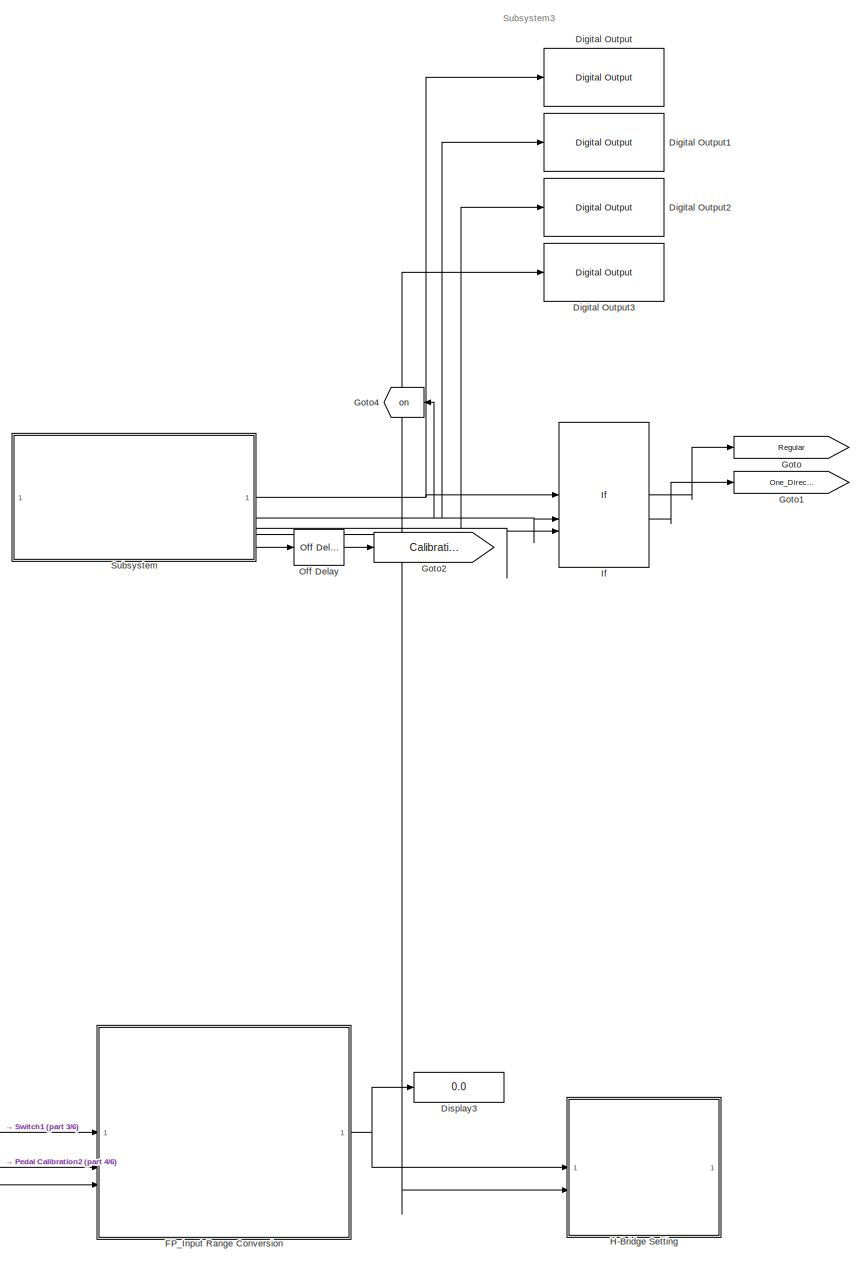
[diagram: root canvas - part 1/6, top right region]
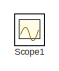
[diagram: root canvas - part 2/6, top left region]
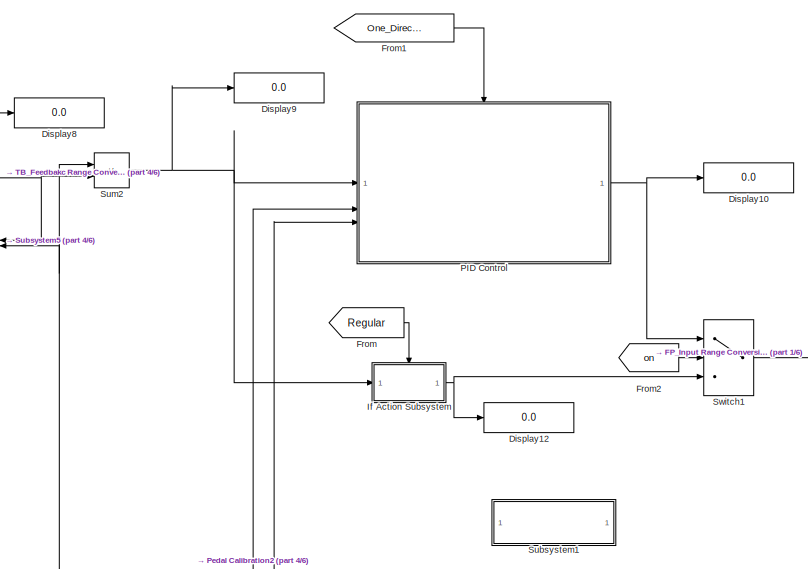
[diagram: root canvas - part 3/6, top center region]
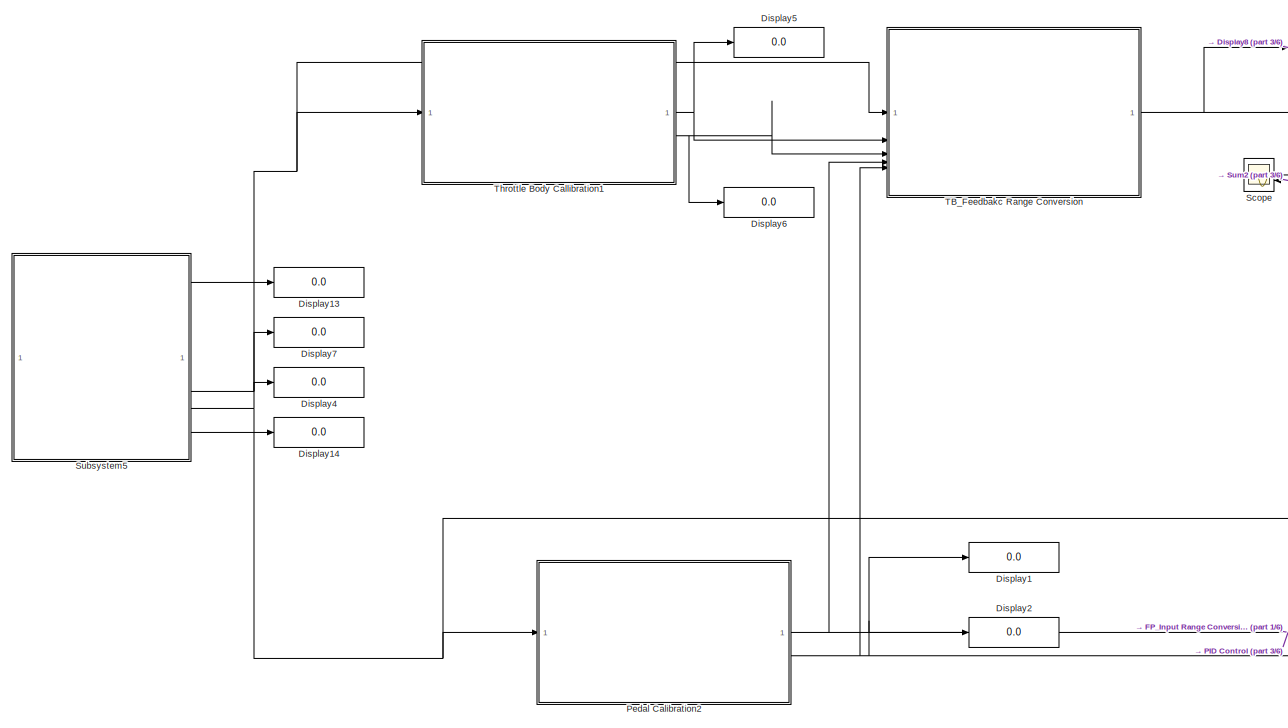
[diagram: root canvas - part 4/6, top left region]
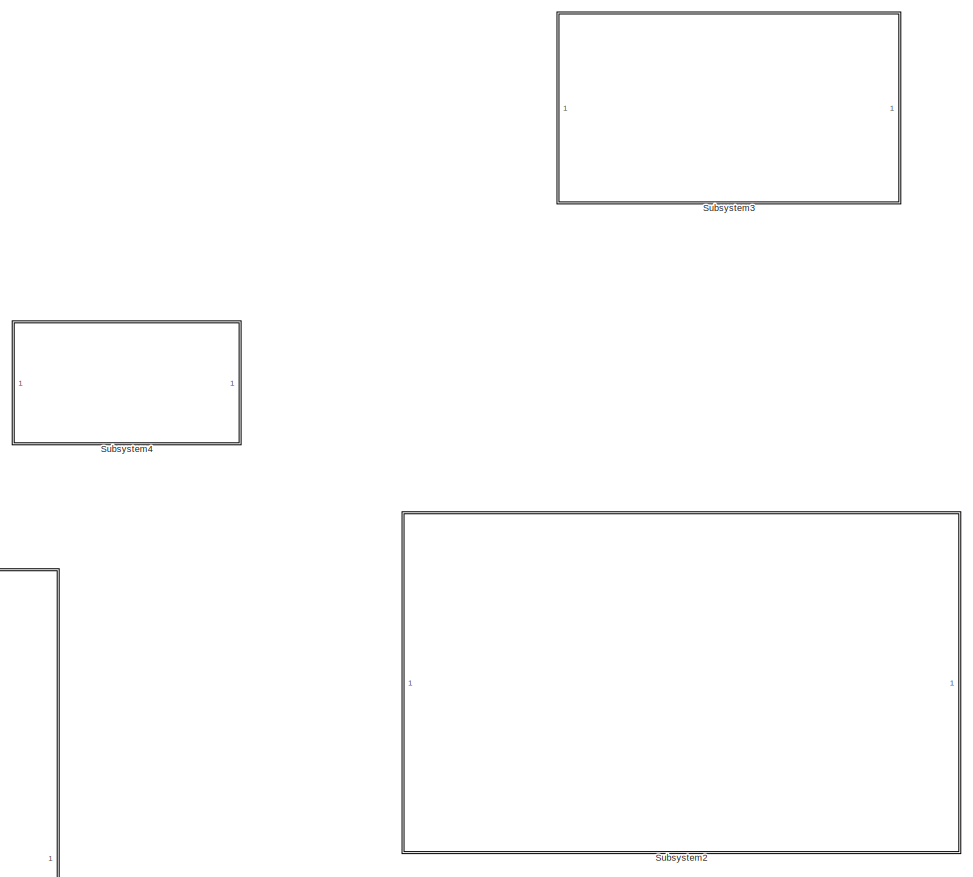
[diagram: root canvas - part 5/6, bottom right region]
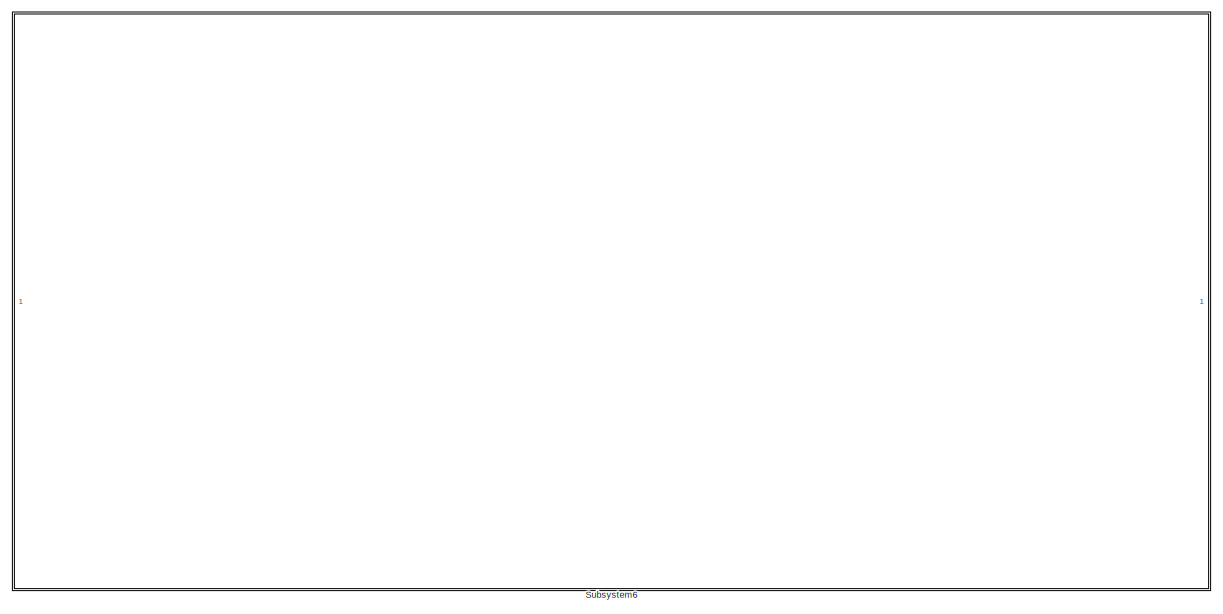
[diagram: root canvas - part 6/6, bottom center region]
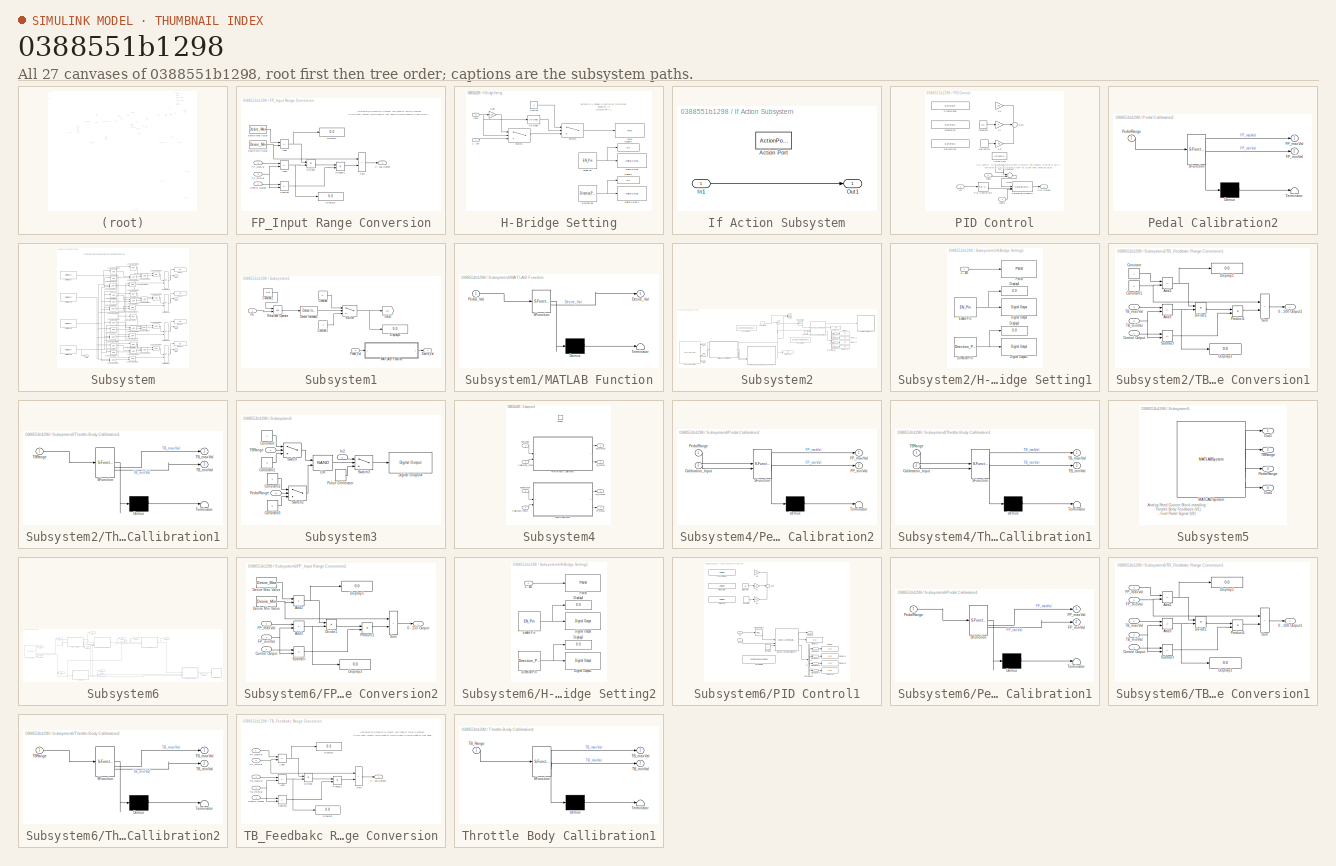
[diagram: thumbnail index - all 27 canvases of the model, root first then tree order]
MODEL slx_0388551b1298
KIND model
CONFIG AbsTol = auto
CONFIG EnableMultiTasking = off
CONFIG FixedStep = auto
CONFIG MaxStep = auto
CONFIG MinStep = auto
CONFIG RelTol = 1e-3
CONFIG SampleTimeConstraint = Unconstrained
CONFIG SolverName = FixedStepAuto
CONFIG StartTime = 0.0
CONFIG StopTime = inf
BLOCK [Reference] Digital Output  REF=arduinolib/Digital Output
  SourceBlock = arduinolib/Digital Output
  SourceType = Arduino Digital Output
BLOCK [Reference] Digital Output1  REF=arduinolib/Digital Output
  SourceBlock = arduinolib/Digital Output
  SourceType = Arduino Digital Output
BLOCK [Reference] Digital Output2  REF=arduinolib/Digital Output
  SourceBlock = arduinolib/Digital Output
  SourceType = Arduino Digital Output
BLOCK [Reference] Digital Output3  REF=arduinolib/Digital Output
  SourceBlock = arduinolib/Digital Output
  SourceType = Arduino Digital Output
BLOCK [Display] Display1
  Decimation = 2
BLOCK [Display] Display10
  Decimation = 2
BLOCK [Display] Display12
  Decimation = 2
BLOCK [Display] Display13
  Decimation = 2
BLOCK [Display] Display14
  Decimation = 2
BLOCK [Display] Display2
  Decimation = 2
BLOCK [Display] Display3
  Decimation = 2
BLOCK [Display] Display4
  Decimation = 2
BLOCK [Display] Display5
  Decimation = 2
BLOCK [Display] Display6
  Decimation = 2
BLOCK [Display] Display7
  Decimation = 2
BLOCK [Display] Display8
  Decimation = 2
BLOCK [Display] Display9
  Decimation = 2
BLOCK [SubSystem] FP_Input Range Conversion
BLOCK [Outport] FP_Input Range Conversion/0 - 255 Output
BLOCK [Sum] FP_Input Range Conversion/Add2
  IconShape = rectangular
  Inputs = +-
BLOCK [Sum] FP_Input Range Conversion/Add3
  IconShape = rectangular
  Inputs = +-
BLOCK [Inport] FP_Input Range Conversion/Control Output
BLOCK [Constant] FP_Input Range Conversion/Desire Max Value
  Value = Desire_Max
BLOCK [Constant] FP_Input Range Conversion/Desire Min Value
  Value = Desire_Min
BLOCK [Display] FP_Input Range Conversion/Display1
  Decimation = 1
BLOCK [Display] FP_Input Range Conversion/Display3
  Decimation = 1
BLOCK [Product] FP_Input Range Conversion/Divide1
  Inputs = */
BLOCK [Inport] FP_Input Range Conversion/FP_maxVal
  Port = 2
BLOCK [Inport] FP_Input Range Conversion/FP_minVal
  Port = 3
BLOCK [Product] FP_Input Range Conversion/Product1
BLOCK [Sum] FP_Input Range Conversion/Subtract
  IconShape = rectangular
  Inputs = +-
BLOCK [Sum] FP_Input Range Conversion/Sum
  IconShape = rectangular
BLOCK [From] From
  GotoTag = Regular
BLOCK [From] From1
  GotoTag = One_Direction
BLOCK [From] From2
  GotoTag = on
BLOCK [Goto] Goto
  GotoTag = Regular
BLOCK [Goto] Goto1
  GotoTag = One_Direction
BLOCK [Goto] Goto2
  GotoTag = Calibration_Mode
BLOCK [Goto] Goto4
  GotoTag = on
  NameLocation = top
BLOCK [SubSystem] H-Bridge Setting
BLOCK [Inport] H-Bridge Setting/1 - 100
BLOCK [Constant] H-Bridge Setting/Constant
  Value = 0
BLOCK [Reference] H-Bridge Setting/Digital Output  REF=arduinolib/Digital Output
  SourceBlock = arduinolib/Digital Output
  SourceType = Arduino Digital Output
BLOCK [Reference] H-Bridge Setting/Digital Output1  REF=arduinolib/Digital Output
  SourceBlock = arduinolib/Digital Output
  SourceType = Arduino Digital Output
BLOCK [Constant] H-Bridge Setting/Direction Pin
  Value = Direction_Pin
BLOCK [Display] H-Bridge Setting/Display3
  Decimation = 1
BLOCK [Display] H-Bridge Setting/Display4
  Decimation = 1
BLOCK [Constant] H-Bridge Setting/Enable Pin
  Value = EN_Pin
BLOCK [Gain] H-Bridge Setting/Gain
  Gain = 100
BLOCK [Inport] H-Bridge Setting/Input
  Port = 2
BLOCK [Reference] H-Bridge Setting/On Delay  REF=spsOnDelayLib/On Delay
  LibrarySourceBlock = sps_lib/Control/On Delay
  SourceBlock = spsOnDelayLib/On Delay
  SourceType = On/Off Delay
BLOCK [Reference] H-Bridge Setting/PWM  REF=arduinolib/PWM
  SourceBlock = arduinolib/PWM
  SourceType = Arduino PWM
BLOCK [Switch] H-Bridge Setting/Switch1
  Criteria = u2 ~= 0
  InputSameDT = off
  SaturateOnIntegerOverflow = off
BLOCK [Switch] H-Bridge Setting/Switch2
  Criteria = u2 ~= 0
  InputSameDT = off
  SaturateOnIntegerOverflow = off
BLOCK [If] If
  ElseIfExpressions = u2 == 1, u3 == 1
  IfExpression = u1 == 1
  NumInputs = 3
BLOCK [SubSystem] If Action Subsystem
  TreatAsAtomicUnit = on
BLOCK [ActionPort] If Action Subsystem/Action Port
  ActionPortLabel = if(u1 == 1)
BLOCK [Inport] If Action Subsystem/In1
BLOCK [Outport] If Action Subsystem/Out1
BLOCK [Reference] Off Delay  REF=spsOffDelayLib/Off Delay
  LibrarySourceBlock = sps_lib/Control/Off Delay
  SourceBlock = spsOffDelayLib/Off Delay
  SourceType = On/Off Delay
BLOCK [SubSystem] PID Control
BLOCK [ActionPort] PID Control/Action Port
  ActionPortLabel = elseif(u2 == 1)
BLOCK [Constant] PID Control/Constant
  Value = 0.01
BLOCK [EditField] PID Control/Delivertive
  Alignment = Center
  Commented = on
  LabelPosition = Hide
  ShowInitialText = on
BLOCK [Derivative] PID Control/Derivative
  Commented = on
BLOCK [Inport] PID Control/In1
BLOCK [Inport] PID Control/Input
  Port = 2
BLOCK [Inport] PID Control/Input1
  Port = 3
BLOCK [EditField] PID Control/Integration
  Alignment = Center
  Commented = on
  LabelPosition = Hide
  ShowInitialText = on
BLOCK [Integrator] PID Control/Integrator
  Commented = on
BLOCK [Gain] PID Control/Kd
  Commented = on
  Gain = Kd
BLOCK [Gain] PID Control/Ki
  Commented = on
  Gain = Ki
BLOCK [Gain] PID Control/Kp
  Commented = on
  Gain = Kp
BLOCK [Reference] PID Control/PID Controller2  REF=slpidlib/PID Controller
  LibrarySourceBlock = simulink/Continuous/PID Controller
  SourceBlock = slpidlib/PID Controller
  SourceType = PID 1dof
BLOCK [Outport] PID Control/PID Output
BLOCK [EditField] PID Control/Proprotional
  Alignment = Center
  Commented = on
  LabelPosition = Hide
  ShowInitialText = on
BLOCK [Reference] PID Control/Saturation Dynamic  REF=simulink/Discontinuities/Saturation
Dynamic
  SourceBlock = simulink/Discontinuities/Saturation\nDynamic
  SourceType = Saturation Dynamic
BLOCK [Sum] PID Control/Sum
  Commented = on
  Inputs = +++
BLOCK [Sum] PID Control/Sum1
  Inputs = ++|
BLOCK [SubSystem] Pedal Calibration2
  ErrorFcn = Stateflow.Translate.translate
  PermitHierarchicalResolution = ExplicitOnly
  SFBlockType = MATLAB Function
  TreatAsAtomicUnit = on
BLOCK [Demux] Pedal Calibration2/ Demux 
  Outputs = 1
BLOCK [S-Function] Pedal Calibration2/ SFunction 
  EnableBusSupport = on
  FunctionName = sf_sfun
  PortCounts = [1 3]
  SFcnIsStateOwnerBlock = off
  SFunctionDeploymentMode = off
  Tag = Stateflow S-Function 9
BLOCK [Terminator] Pedal Calibration2/ Terminator 
BLOCK [Outport] Pedal Calibration2/FP_maxVal
BLOCK [Outport] Pedal Calibration2/FP_minVal
  Port = 2
BLOCK [Inport] Pedal Calibration2/PedalRange
BLOCK [Scope] Scope
  Floating = off
  NameLocation = top
  NumInputPorts = 2
  ScopeSpecificationString = Simulink.scopes.TimeScopeBlockCfg('CurrentConfiguration', extmgr.ConfigurationSet(extmgr.Configuration('Core','General UI',true),extmgr.Configuration('Core','Source UI',true),extmgr.Configuration('Sources','WiredSimulink',true,'DataLoggingVariableName','ScopeData1'),extmgr.Configuration('Visuals','Time Domain',true,'SerializedDisplays',{struct('MinYLimReal','0.03635','MaxYLimReal','0.03659','YLabe...<+2256ch>
BLOCK [Scope] Scope1
  Floating = off
  IOType = viewer
  NumInputPorts = 1
  ScopeSpecificationString = Simulink.scopes.TimeScopeBlockCfg('CurrentConfiguration', extmgr.ConfigurationSet(extmgr.Configuration('Core','General UI',true),extmgr.Configuration('Core','Source UI',true),extmgr.Configuration('Sources','WiredSimulink',true,'DataLoggingVariableName','ScopeData2'),extmgr.Configuration('Visuals','Time Domain',true,'SerializedDisplays',{struct('MinYLimReal','-10','MaxYLimReal','10','YLabelReal',''...<+877ch>
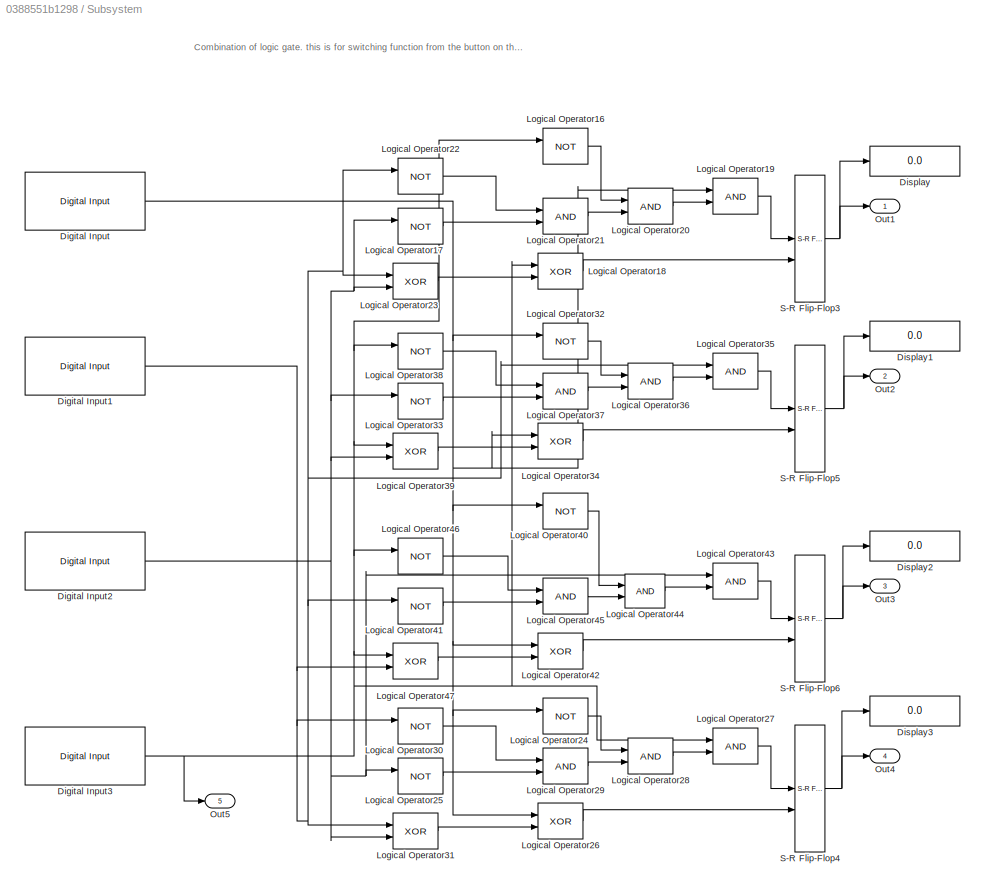
BLOCK [SubSystem] Subsystem
BLOCK [Reference] Subsystem/Digital Input  REF=arduinolib/Digital Input
  SourceBlock = arduinolib/Digital Input
  SourceType = Arduino Digital Input
BLOCK [Reference] Subsystem/Digital Input1  REF=arduinolib/Digital Input
  SourceBlock = arduinolib/Digital Input
  SourceType = Arduino Digital Input
BLOCK [Reference] Subsystem/Digital Input2  REF=arduinolib/Digital Input
  SourceBlock = arduinolib/Digital Input
  SourceType = Arduino Digital Input
BLOCK [Reference] Subsystem/Digital Input3  REF=arduinolib/Digital Input
  SourceBlock = arduinolib/Digital Input
  SourceType = Arduino Digital Input
BLOCK [Display] Subsystem/Display
  Decimation = 1
BLOCK [Display] Subsystem/Display1
  Decimation = 1
BLOCK [Display] Subsystem/Display2
  Decimation = 1
BLOCK [Display] Subsystem/Display3
  Decimation = 1
BLOCK [Logic] Subsystem/Logical Operator16
  AllPortsSameDT = off
  IconShape = distinctive
  Operator = NOT
  OutDataTypeStr = boolean
BLOCK [Logic] Subsystem/Logical Operator17
  AllPortsSameDT = off
  IconShape = distinctive
  Operator = NOT
  OutDataTypeStr = boolean
BLOCK [Logic] Subsystem/Logical Operator18
  AllPortsSameDT = off
  IconShape = distinctive
  Operator = XOR
  OutDataTypeStr = boolean
BLOCK [Logic] Subsystem/Logical Operator19
  AllPortsSameDT = off
  IconShape = distinctive
  OutDataTypeStr = boolean
BLOCK [Logic] Subsystem/Logical Operator20
  AllPortsSameDT = off
  IconShape = distinctive
  OutDataTypeStr = boolean
BLOCK [Logic] Subsystem/Logical Operator21
  AllPortsSameDT = off
  IconShape = distinctive
  OutDataTypeStr = boolean
BLOCK [Logic] Subsystem/Logical Operator22
  AllPortsSameDT = off
  IconShape = distinctive
  Operator = NOT
  OutDataTypeStr = boolean
BLOCK [Logic] Subsystem/Logical Operator23
  AllPortsSameDT = off
  IconShape = distinctive
  Operator = XOR
  OutDataTypeStr = boolean
BLOCK [Logic] Subsystem/Logical Operator24
  AllPortsSameDT = off
  IconShape = distinctive
  Operator = NOT
  OutDataTypeStr = boolean
BLOCK [Logic] Subsystem/Logical Operator25
  AllPortsSameDT = off
  IconShape = distinctive
  Operator = NOT
  OutDataTypeStr = boolean
BLOCK [Logic] Subsystem/Logical Operator26
  AllPortsSameDT = off
  IconShape = distinctive
  Operator = XOR
  OutDataTypeStr = boolean
BLOCK [Logic] Subsystem/Logical Operator27
  AllPortsSameDT = off
  IconShape = distinctive
  OutDataTypeStr = boolean
BLOCK [Logic] Subsystem/Logical Operator28
  AllPortsSameDT = off
  IconShape = distinctive
  OutDataTypeStr = boolean
BLOCK [Logic] Subsystem/Logical Operator29
  AllPortsSameDT = off
  IconShape = distinctive
  OutDataTypeStr = boolean
BLOCK [Logic] Subsystem/Logical Operator30
  AllPortsSameDT = off
  IconShape = distinctive
  Operator = NOT
  OutDataTypeStr = boolean
BLOCK [Logic] Subsystem/Logical Operator31
  AllPortsSameDT = off
  IconShape = distinctive
  Operator = XOR
  OutDataTypeStr = boolean
BLOCK [Logic] Subsystem/Logical Operator32
  AllPortsSameDT = off
  IconShape = distinctive
  Operator = NOT
  OutDataTypeStr = boolean
BLOCK [Logic] Subsystem/Logical Operator33
  AllPortsSameDT = off
  IconShape = distinctive
  Operator = NOT
  OutDataTypeStr = boolean
BLOCK [Logic] Subsystem/Logical Operator34
  AllPortsSameDT = off
  IconShape = distinctive
  Operator = XOR
  OutDataTypeStr = boolean
BLOCK [Logic] Subsystem/Logical Operator35
  AllPortsSameDT = off
  IconShape = distinctive
  OutDataTypeStr = boolean
BLOCK [Logic] Subsystem/Logical Operator36
  AllPortsSameDT = off
  IconShape = distinctive
  OutDataTypeStr = boolean
BLOCK [Logic] Subsystem/Logical Operator37
  AllPortsSameDT = off
  IconShape = distinctive
  OutDataTypeStr = boolean
BLOCK [Logic] Subsystem/Logical Operator38
  AllPortsSameDT = off
  IconShape = distinctive
  Operator = NOT
  OutDataTypeStr = boolean
BLOCK [Logic] Subsystem/Logical Operator39
  AllPortsSameDT = off
  IconShape = distinctive
  Operator = XOR
  OutDataTypeStr = boolean
BLOCK [Logic] Subsystem/Logical Operator40
  AllPortsSameDT = off
  IconShape = distinctive
  Operator = NOT
  OutDataTypeStr = boolean
BLOCK [Logic] Subsystem/Logical Operator41
  AllPortsSameDT = off
  IconShape = distinctive
  Operator = NOT
  OutDataTypeStr = boolean
BLOCK [Logic] Subsystem/Logical Operator42
  AllPortsSameDT = off
  IconShape = distinctive
  Operator = XOR
  OutDataTypeStr = boolean
BLOCK [Logic] Subsystem/Logical Operator43
  AllPortsSameDT = off
  IconShape = distinctive
  OutDataTypeStr = boolean
BLOCK [Logic] Subsystem/Logical Operator44
  AllPortsSameDT = off
  IconShape = distinctive
  OutDataTypeStr = boolean
BLOCK [Logic] Subsystem/Logical Operator45
  AllPortsSameDT = off
  IconShape = distinctive
  OutDataTypeStr = boolean
BLOCK [Logic] Subsystem/Logical Operator46
  AllPortsSameDT = off
  IconShape = distinctive
  Operator = NOT
  OutDataTypeStr = boolean
BLOCK [Logic] Subsystem/Logical Operator47
  AllPortsSameDT = off
  IconShape = distinctive
  Operator = XOR
  OutDataTypeStr = boolean
BLOCK [Outport] Subsystem/Out1
BLOCK [Outport] Subsystem/Out2
  Port = 2
BLOCK [Outport] Subsystem/Out3
  Port = 3
BLOCK [Outport] Subsystem/Out4
  Port = 4
BLOCK [Outport] Subsystem/Out5
  Port = 5
BLOCK [Reference] Subsystem/S-R Flip-Flop3  REF=simulink_extras/Flip Flops/S-R
Flip-Flop
  SourceBlock = simulink_extras/Flip Flops/S-R\nFlip-Flop
  SourceType = SRFlipFlop
BLOCK [Reference] Subsystem/S-R Flip-Flop4  REF=simulink_extras/Flip Flops/S-R
Flip-Flop
  SourceBlock = simulink_extras/Flip Flops/S-R\nFlip-Flop
  SourceType = SRFlipFlop
BLOCK [Reference] Subsystem/S-R Flip-Flop5  REF=simulink_extras/Flip Flops/S-R
Flip-Flop
  SourceBlock = simulink_extras/Flip Flops/S-R\nFlip-Flop
  SourceType = SRFlipFlop
BLOCK [Reference] Subsystem/S-R Flip-Flop6  REF=simulink_extras/Flip Flops/S-R
Flip-Flop
  SourceBlock = simulink_extras/Flip Flops/S-R\nFlip-Flop
  SourceType = SRFlipFlop
BLOCK [SubSystem] Subsystem1
BLOCK [Constant] Subsystem1/Constant
  Value = 0
BLOCK [Constant] Subsystem1/Constant1
BLOCK [Constant] Subsystem1/Constant2
  Value = 0.02
BLOCK [Outport] Subsystem1/Desire_Val
BLOCK [Reference] Subsystem1/Detect Increase1  REF=simulink/Logic and Bit
Operations/Detect
Increase
  SourceBlock = simulink/Logic and Bit\nOperations/Detect\nIncrease
  SourceType = Detect Increase
BLOCK [Display] Subsystem1/Display13
  Decimation = 2
BLOCK [Goto] Subsystem1/Goto5
  GotoTag = try
BLOCK [Inport] Subsystem1/In1
BLOCK [SubSystem] Subsystem1/MATLAB Function
  ErrorFcn = Stateflow.Translate.translate
  PermitHierarchicalResolution = ExplicitOnly
  SFBlockType = MATLAB Function
  TreatAsAtomicUnit = on
BLOCK [Demux] Subsystem1/MATLAB Function/ Demux 
  Outputs = 1
BLOCK [S-Function] Subsystem1/MATLAB Function/ SFunction 
  EnableBusSupport = on
  FunctionName = sf_sfun
  PortCounts = [1 2]
  SFcnIsStateOwnerBlock = off
  SFunctionDeploymentMode = off
  Tag = Stateflow S-Function 3
BLOCK [Terminator] Subsystem1/MATLAB Function/ Terminator 
BLOCK [Outport] Subsystem1/MATLAB Function/Desire_Val
BLOCK [Inport] Subsystem1/MATLAB Function/Pedal_Val
BLOCK [Inport] Subsystem1/Pedal_Val
  Port = 2
BLOCK [RelationalOperator] Subsystem1/Relational Operator
  InputSameDT = off
  OutDataTypeStr = boolean
  RndMeth = Simplest
BLOCK [Switch] Subsystem1/Switch
  Criteria = u2 ~= 0
  InputSameDT = off
  SaturateOnIntegerOverflow = off
  Threshold = 1
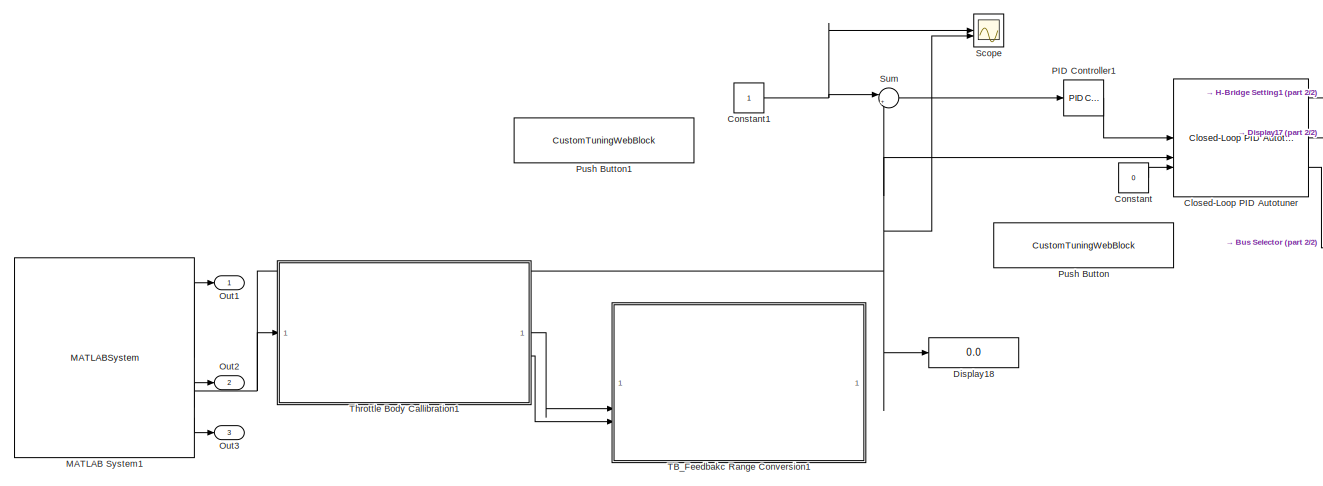
[diagram: Subsystem2 - part 1/2, most of the canvas]
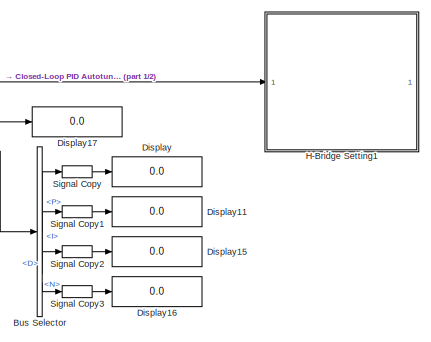
[diagram: Subsystem2 - part 2/2, middle right region]
BLOCK [SubSystem] Subsystem2
  Commented = on
BLOCK [BusSelector] Subsystem2/Bus Selector
  OutputSignals = P,I,D,N
BLOCK [Reference] Subsystem2/Closed-Loop PID Autotuner  REF=slctrl_autotuning/Closed-Loop PID Autotuner
  LibrarySourceBlock = slctrlblks/Autotuning/Closed-Loop PID Autotuner
  SourceBlock = slctrl_autotuning/Closed-Loop PID Autotuner
  SourceType = ClosedLoopOnlinePIDTuner
BLOCK [Constant] Subsystem2/Constant
  Value = 0
BLOCK [Constant] Subsystem2/Constant1
BLOCK [Display] Subsystem2/Display
  Decimation = 1
BLOCK [Display] Subsystem2/Display11
  Decimation = 1
BLOCK [Display] Subsystem2/Display15
  Decimation = 1
BLOCK [Display] Subsystem2/Display16
  Decimation = 1
BLOCK [Display] Subsystem2/Display17
  Decimation = 1
BLOCK [Display] Subsystem2/Display18
  Decimation = 1
BLOCK [SubSystem] Subsystem2/H-Bridge Setting1
BLOCK [Inport] Subsystem2/H-Bridge Setting1/1 - 100
BLOCK [Reference] Subsystem2/H-Bridge Setting1/Digital Output  REF=arduinolib/Digital Output
  SourceBlock = arduinolib/Digital Output
  SourceType = Arduino Digital Output
BLOCK [Reference] Subsystem2/H-Bridge Setting1/Digital Output1  REF=arduinolib/Digital Output
  SourceBlock = arduinolib/Digital Output
  SourceType = Arduino Digital Output
BLOCK [Constant] Subsystem2/H-Bridge Setting1/Direction Pin
  Value = Direction_Pin
BLOCK [Display] Subsystem2/H-Bridge Setting1/Display3
  Decimation = 1
BLOCK [Display] Subsystem2/H-Bridge Setting1/Display4
  Decimation = 1
BLOCK [Constant] Subsystem2/H-Bridge Setting1/Enable Pin
  Value = EN_Pin
BLOCK [Reference] Subsystem2/H-Bridge Setting1/PWM  REF=arduinolib/PWM
  SourceBlock = arduinolib/PWM
  SourceType = Arduino PWM
BLOCK [MATLABSystem] Subsystem2/MATLAB System1
  MaskDisplay = color('white');plot([100,100,100,100]*1,[100,100,100,100]*1);plot([100,100,100,100]*0,[100,100,100,100]*0);color('blue');text(38, 92, 'IO Device Builder','horizontalAlignment', 'right');\ncolor('black');text(52,50,' ADS1115_Vread','horizontalAlignment','center');\nport_label('output',1,'V0');port_label('output',2,'V1');port_label('output',3,'V2');port_label('output',4,'V3');  <repeated x3 — deduplicated; at blocks: MATLAB System1, MATLAB System, MATLAB System2>
  MaskType = ADS1115_Vread
  SampleTime = -1
  SetGain = int16( 16 )
  System = ADS1115_Vread
BLOCK [Outport] Subsystem2/Out1
BLOCK [Outport] Subsystem2/Out2
  Port = 2
BLOCK [Outport] Subsystem2/Out3
  Port = 3
BLOCK [Reference] Subsystem2/PID Controller1  REF=slpidlib/PID Controller
  LibrarySourceBlock = simulink/Continuous/PID Controller
  SourceBlock = slpidlib/PID Controller
  SourceType = PID 1dof
BLOCK [CustomTuningWebBlock] Subsystem2/Push Button
  Configuration = {"components":[{"name":"BackgroundImageComponent","settings":{"image":{"size":[0,0],"src":"default","srcOrientation":"horizontal"},"position":[0,0,1,1],"scaleMode":"0"}},{"name":"ButtonStateComponent","settings":{"buttonType":"latch","clickFcn":"","image":{"size":[180,45],"srcOrientation":"Right"},"latched":false,"offValue":null,"onValue":"1","position":[0,0,1,1],"pressDelay":"500","pressFcn":"","...<+16099ch>
  LabelPosition = Hide
  ShowInitialText = on
BLOCK [CustomTuningWebBlock] Subsystem2/Push Button1
  Configuration = {"components":[{"name":"BackgroundImageComponent","settings":{"image":{"size":[0,0],"src":"default","srcOrientation":"horizontal"},"position":[0,0,1,1],"scaleMode":"0"}},{"name":"ButtonStateComponent","settings":{"buttonType":"latch","clickFcn":"","image":{"size":[180,45],"srcOrientation":"Right"},"latched":true,"offValue":0,"onValue":"1","position":[0,0,1,1],"pressDelay":"500","pressFcn":"","repe...<+16095ch>
  LabelPosition = Hide
  ShowInitialText = on
BLOCK [Scope] Subsystem2/Scope
  Floating = off
  NumInputPorts = 2
  ScopeSpecificationString = Simulink.scopes.TimeScopeBlockCfg('CurrentConfiguration', extmgr.ConfigurationSet(extmgr.Configuration('Core','General UI',true),extmgr.Configuration('Core','Source UI',true),extmgr.Configuration('Sources','WiredSimulink',true),extmgr.Configuration('Visuals','Time Domain',true,'SerializedDisplays',{struct('MinYLimReal','-0.08281','MaxYLimReal','1.12031','YLabelReal','','MinYLimMag','0.00000','MaxY...<+1463ch>
BLOCK [SignalConversion] Subsystem2/Signal Copy
  OverrideOpt = off
BLOCK [SignalConversion] Subsystem2/Signal Copy1
  OverrideOpt = off
BLOCK [SignalConversion] Subsystem2/Signal Copy2
  OverrideOpt = off
BLOCK [SignalConversion] Subsystem2/Signal Copy3
  OverrideOpt = off
BLOCK [Sum] Subsystem2/Sum
  Inputs = |+-
BLOCK [SubSystem] Subsystem2/TB_Feedbakc Range Conversion1
BLOCK [Outport] Subsystem2/TB_Feedbakc Range Conversion1/0 - 100 Output1
BLOCK [Sum] Subsystem2/TB_Feedbakc Range Conversion1/Add2
  IconShape = rectangular
  Inputs = +-
BLOCK [Sum] Subsystem2/TB_Feedbakc Range Conversion1/Add3
  IconShape = rectangular
  Inputs = +-
BLOCK [Constant] Subsystem2/TB_Feedbakc Range Conversion1/Constant
BLOCK [Constant] Subsystem2/TB_Feedbakc Range Conversion1/Constant1
  Value = 0
BLOCK [Inport] Subsystem2/TB_Feedbakc Range Conversion1/Control Output
BLOCK [Display] Subsystem2/TB_Feedbakc Range Conversion1/Display1
  Decimation = 1
BLOCK [Display] Subsystem2/TB_Feedbakc Range Conversion1/Display3
  Decimation = 1
BLOCK [Product] Subsystem2/TB_Feedbakc Range Conversion1/Divide1
  Inputs = */
BLOCK [Product] Subsystem2/TB_Feedbakc Range Conversion1/Product1
BLOCK [Sum] Subsystem2/TB_Feedbakc Range Conversion1/Subtract
  IconShape = rectangular
  Inputs = +-
BLOCK [Sum] Subsystem2/TB_Feedbakc Range Conversion1/Sum
  IconShape = rectangular
BLOCK [Inport] Subsystem2/TB_Feedbakc Range Conversion1/TB_maxVal
  Port = 2
BLOCK [Inport] Subsystem2/TB_Feedbakc Range Conversion1/TB_minVal
  Port = 3
BLOCK [SubSystem] Subsystem2/Throttle Body Callibration1
  ErrorFcn = Stateflow.Translate.translate
  PermitHierarchicalResolution = ExplicitOnly
  SFBlockType = MATLAB Function
  TreatAsAtomicUnit = on
BLOCK [Demux] Subsystem2/Throttle Body Callibration1/ Demux 
  Outputs = 1
BLOCK [S-Function] Subsystem2/Throttle Body Callibration1/ SFunction 
  EnableBusSupport = on
  FunctionName = sf_sfun
  PortCounts = [1 3]
  SFcnIsStateOwnerBlock = off
  SFunctionDeploymentMode = off
  Tag = Stateflow S-Function 4
BLOCK [Terminator] Subsystem2/Throttle Body Callibration1/ Terminator 
BLOCK [Inport] Subsystem2/Throttle Body Callibration1/TBRange
BLOCK [Outport] Subsystem2/Throttle Body Callibration1/TB_maxVal
BLOCK [Outport] Subsystem2/Throttle Body Callibration1/TB_minVal
  Port = 2
BLOCK [SubSystem] Subsystem3
  Commented = on
BLOCK [Constant] Subsystem3/Constant
BLOCK [Constant] Subsystem3/Constant1
  Value = 0
BLOCK [Constant] Subsystem3/Constant2
BLOCK [Constant] Subsystem3/Constant3
  Value = 0
BLOCK [Reference] Subsystem3/Digital Output4  REF=arduinolib/Digital Output
  SourceBlock = arduinolib/Digital Output
  SourceType = Arduino Digital Output
BLOCK [Inport] Subsystem3/In2
  Port = 2
BLOCK [Logic] Subsystem3/OR
  AllPortsSameDT = off
  IconShape = distinctive
  Operator = NAND
  OutDataTypeStr = boolean
BLOCK [Inport] Subsystem3/PedalRange
  Port = 3
BLOCK [DiscretePulseGenerator] Subsystem3/Pulse Generator
  Period = 10
  PulseType = Time based
  PulseWidth = 50
BLOCK [Switch] Subsystem3/Switch
  Criteria = u2 ~= 0
  InputSameDT = off
  SaturateOnIntegerOverflow = off
BLOCK [Switch] Subsystem3/Switch2
  Criteria = u2 ~= 0
  InputSameDT = off
  SaturateOnIntegerOverflow = off
BLOCK [Switch] Subsystem3/Switch3
  Criteria = u2 ~= 0
  InputSameDT = off
  SaturateOnIntegerOverflow = off
BLOCK [Inport] Subsystem3/TBRange
BLOCK [SubSystem] Subsystem4
  Commented = on
BLOCK [Inport] Subsystem4/Calibration_Input
  Port = 2
BLOCK [Inport] Subsystem4/Calibration_Input1
  Port = 4
BLOCK [EnablePort] Subsystem4/Enable
BLOCK [Outport] Subsystem4/FP_maxVal
  Port = 3
BLOCK [Outport] Subsystem4/FP_minVal
  Port = 4
BLOCK [SubSystem] Subsystem4/Pedal Calibration2
  ErrorFcn = Stateflow.Translate.translate
  PermitHierarchicalResolution = ExplicitOnly
  SFBlockType = MATLAB Function
  TreatAsAtomicUnit = on
BLOCK [Demux] Subsystem4/Pedal Calibration2/ Demux 
  Outputs = 1
BLOCK [S-Function] Subsystem4/Pedal Calibration2/ SFunction 
  EnableBusSupport = on
  FunctionName = sf_sfun
  PortCounts = [2 3]
  SFcnIsStateOwnerBlock = off
  SFunctionDeploymentMode = off
  Tag = Stateflow S-Function 6
BLOCK [Terminator] Subsystem4/Pedal Calibration2/ Terminator 
BLOCK [Inport] Subsystem4/Pedal Calibration2/Calibration_Input
  Port = 2
BLOCK [Outport] Subsystem4/Pedal Calibration2/FP_maxVal
BLOCK [Outport] Subsystem4/Pedal Calibration2/FP_minVal
  Port = 2
BLOCK [Inport] Subsystem4/Pedal Calibration2/PedalRange
BLOCK [Inport] Subsystem4/PedalRange
  Port = 3
BLOCK [Inport] Subsystem4/TBRange
BLOCK [Outport] Subsystem4/TB_maxVal
BLOCK [Outport] Subsystem4/TB_minVal
  Port = 2
BLOCK [SubSystem] Subsystem4/Throttle Body Callibration1
  ErrorFcn = Stateflow.Translate.translate
  PermitHierarchicalResolution = ExplicitOnly
  SFBlockType = MATLAB Function
  TreatAsAtomicUnit = on
BLOCK [Demux] Subsystem4/Throttle Body Callibration1/ Demux 
  Outputs = 1
BLOCK [S-Function] Subsystem4/Throttle Body Callibration1/ SFunction 
  EnableBusSupport = on
  FunctionName = sf_sfun
  PortCounts = [2 3]
  SFcnIsStateOwnerBlock = off
  SFunctionDeploymentMode = off
  Tag = Stateflow S-Function 8
BLOCK [Terminator] Subsystem4/Throttle Body Callibration1/ Terminator 
BLOCK [Inport] Subsystem4/Throttle Body Callibration1/Calibration_Input
  Port = 2
BLOCK [Inport] Subsystem4/Throttle Body Callibration1/TBRange
BLOCK [Outport] Subsystem4/Throttle Body Callibration1/TB_maxVal
BLOCK [Outport] Subsystem4/Throttle Body Callibration1/TB_minVal
  Port = 2
BLOCK [SubSystem] Subsystem5
BLOCK [MATLABSystem] Subsystem5/MATLAB System
  MaskType = ADS1115_Vread
  SampleTime = -1
  SetGain = int16( 16 )
  System = ADS1115_Vread
BLOCK [Outport] Subsystem5/Out1
BLOCK [Outport] Subsystem5/Out4
  Port = 4
BLOCK [Outport] Subsystem5/PedalRange
  Port = 3
BLOCK [Outport] Subsystem5/TBRange
  Port = 2
BLOCK [SubSystem] Subsystem6
  Commented = on
BLOCK [Display] Subsystem6/Display19
  Decimation = 2
BLOCK [Display] Subsystem6/Display20
  Decimation = 2
BLOCK [Display] Subsystem6/Display22
  Decimation = 2
BLOCK [Display] Subsystem6/Display23
  Decimation = 2
BLOCK [Display] Subsystem6/Display24
  Decimation = 2
BLOCK [Display] Subsystem6/Display25
  Decimation = 2
BLOCK [Display] Subsystem6/Display26
  Decimation = 2
BLOCK [Display] Subsystem6/Display27
  Decimation = 2
BLOCK [Display] Subsystem6/Display28
  Decimation = 2
BLOCK [Display] Subsystem6/Display29
  Decimation = 2
BLOCK [Display] Subsystem6/Display30
  Decimation = 2
BLOCK [Display] Subsystem6/Display31
  Decimation = 2
BLOCK [SubSystem] Subsystem6/FP_Input Range Conversion2
BLOCK [Outport] Subsystem6/FP_Input Range Conversion2/0 - 255 Output
BLOCK [Sum] Subsystem6/FP_Input Range Conversion2/Add2
  IconShape = rectangular
  Inputs = +-
BLOCK [Sum] Subsystem6/FP_Input Range Conversion2/Add3
  IconShape = rectangular
  Inputs = +-
BLOCK [Inport] Subsystem6/FP_Input Range Conversion2/Control Output
BLOCK [Constant] Subsystem6/FP_Input Range Conversion2/Desire Max Value
  Value = Desire_Max
BLOCK [Constant] Subsystem6/FP_Input Range Conversion2/Desire Min Value
  Value = Desire_Min
BLOCK [Display] Subsystem6/FP_Input Range Conversion2/Display1
  Decimation = 1
BLOCK [Display] Subsystem6/FP_Input Range Conversion2/Display3
  Decimation = 1
BLOCK [Product] Subsystem6/FP_Input Range Conversion2/Divide1
  Inputs = */
BLOCK [Inport] Subsystem6/FP_Input Range Conversion2/FP_maxVal
  Port = 2
BLOCK [Inport] Subsystem6/FP_Input Range Conversion2/FP_minVal
  Port = 3
BLOCK [Product] Subsystem6/FP_Input Range Conversion2/Product1
BLOCK [Sum] Subsystem6/FP_Input Range Conversion2/Subtract
  IconShape = rectangular
  Inputs = +-
BLOCK [Sum] Subsystem6/FP_Input Range Conversion2/Sum
  IconShape = rectangular
BLOCK [SubSystem] Subsystem6/H-Bridge Setting2
BLOCK [Inport] Subsystem6/H-Bridge Setting2/1 - 100
BLOCK [Reference] Subsystem6/H-Bridge Setting2/Digital Output  REF=arduinolib/Digital Output
  SourceBlock = arduinolib/Digital Output
  SourceType = Arduino Digital Output
BLOCK [Reference] Subsystem6/H-Bridge Setting2/Digital Output1  REF=arduinolib/Digital Output
  SourceBlock = arduinolib/Digital Output
  SourceType = Arduino Digital Output
BLOCK [Constant] Subsystem6/H-Bridge Setting2/Direction Pin
  Value = Direction_Pin
BLOCK [Display] Subsystem6/H-Bridge Setting2/Display3
  Decimation = 1
BLOCK [Display] Subsystem6/H-Bridge Setting2/Display4
  Decimation = 1
BLOCK [Constant] Subsystem6/H-Bridge Setting2/Enable Pin
  Value = EN_Pin
BLOCK [Reference] Subsystem6/H-Bridge Setting2/PWM  REF=arduinolib/PWM
  SourceBlock = arduinolib/PWM
  SourceType = Arduino PWM
BLOCK [MATLABSystem] Subsystem6/MATLAB System2
  MaskType = ADS1115_Vread
  SampleTime = -1
  SetGain = int16( 16 )
  System = ADS1115_Vread
BLOCK [SubSystem] Subsystem6/PID Control1
BLOCK [BusSelector] Subsystem6/PID Control1/Bus Selector
  OutputSignals = P,I,D,N
BLOCK [Reference] Subsystem6/PID Control1/Closed-Loop PID Autotuner1  REF=slctrl_autotuning/Closed-Loop PID Autotuner
  LibrarySourceBlock = slctrlblks/Autotuning/Closed-Loop PID Autotuner
  SourceBlock = slctrl_autotuning/Closed-Loop PID Autotuner
  SourceType = ClosedLoopOnlinePIDTuner
BLOCK [Constant] Subsystem6/PID Control1/Constant
BLOCK [EditField] Subsystem6/PID Control1/Delivertive
  Alignment = Center
  Commented = on
  LabelPosition = Hide
  ShowInitialText = on
BLOCK [Derivative] Subsystem6/PID Control1/Derivative
  Commented = on
BLOCK [Display] Subsystem6/PID Control1/Display
  Decimation = 1
BLOCK [Display] Subsystem6/PID Control1/Display11
  Decimation = 1
BLOCK [Display] Subsystem6/PID Control1/Display15
  Decimation = 1
BLOCK [Display] Subsystem6/PID Control1/Display16
  Decimation = 1
BLOCK [Display] Subsystem6/PID Control1/Display17
  Decimation = 1
BLOCK [Inport] Subsystem6/PID Control1/In1
BLOCK [Inport] Subsystem6/PID Control1/Input
  Port = 2
BLOCK [EditField] Subsystem6/PID Control1/Integration
  Alignment = Center
  Commented = on
  LabelPosition = Hide
  ShowInitialText = on
BLOCK [Integrator] Subsystem6/PID Control1/Integrator
  Commented = on
BLOCK [Gain] Subsystem6/PID Control1/Kd
  Commented = on
  Gain = Kd
BLOCK [Gain] Subsystem6/PID Control1/Ki
  Commented = on
  Gain = Ki
BLOCK [Gain] Subsystem6/PID Control1/Kp
  Commented = on
  Gain = Kp
BLOCK [Reference] Subsystem6/PID Control1/PID Controller1  REF=slpidlib/PID Controller
  LibrarySourceBlock = simulink/Continuous/PID Controller
  SourceBlock = slpidlib/PID Controller
  SourceType = PID 1dof
BLOCK [Outport] Subsystem6/PID Control1/PID Output
BLOCK [EditField] Subsystem6/PID Control1/Proprotional
  Alignment = Center
  Commented = on
  LabelPosition = Hide
  ShowInitialText = on
BLOCK [CustomTuningWebBlock] Subsystem6/PID Control1/Push Button
  Configuration = {"components":[{"name":"BackgroundImageComponent","settings":{"image":{"size":[0,0],"src":"default","srcOrientation":"horizontal"},"position":[0,0,1,1],"scaleMode":"0"}},{"name":"ButtonStateComponent","settings":{"buttonType":"latch","clickFcn":"","image":{"size":[180,45],"srcOrientation":"Right"},"latched":true,"offValue":0,"onValue":"1","position":[0,0,1,1],"pressDelay":"500","pressFcn":"","repe...<+16095ch>
  LabelPosition = Hide
  ShowInitialText = on
BLOCK [SignalConversion] Subsystem6/PID Control1/Signal Copy
  OverrideOpt = off
BLOCK [SignalConversion] Subsystem6/PID Control1/Signal Copy1
  OverrideOpt = off
BLOCK [SignalConversion] Subsystem6/PID Control1/Signal Copy2
  OverrideOpt = off
BLOCK [SignalConversion] Subsystem6/PID Control1/Signal Copy3
  OverrideOpt = off
BLOCK [Sum] Subsystem6/PID Control1/Sum
  Commented = on
  Inputs = +++
BLOCK [SubSystem] Subsystem6/Pedal Calibration1
  ErrorFcn = Stateflow.Translate.translate
  PermitHierarchicalResolution = ExplicitOnly
  SFBlockType = MATLAB Function
  TreatAsAtomicUnit = on
BLOCK [Demux] Subsystem6/Pedal Calibration1/ Demux 
  Outputs = 1
BLOCK [S-Function] Subsystem6/Pedal Calibration1/ SFunction 
  EnableBusSupport = on
  FunctionName = sf_sfun
  PortCounts = [1 3]
  SFcnIsStateOwnerBlock = off
  SFunctionDeploymentMode = off
  Tag = Stateflow S-Function 5
BLOCK [Terminator] Subsystem6/Pedal Calibration1/ Terminator 
BLOCK [Outport] Subsystem6/Pedal Calibration1/FP_maxVal
BLOCK [Outport] Subsystem6/Pedal Calibration1/FP_minVal
  Port = 2
BLOCK [Inport] Subsystem6/Pedal Calibration1/PedalRange
BLOCK [Sum] Subsystem6/Sum1
  IconShape = rectangular
  Inputs = +-
BLOCK [SubSystem] Subsystem6/TB_Feedbakc Range Conversion1
BLOCK [Outport] Subsystem6/TB_Feedbakc Range Conversion1/0 - 100 Output1
BLOCK [Sum] Subsystem6/TB_Feedbakc Range Conversion1/Add2
  IconShape = rectangular
  Inputs = +-
BLOCK [Sum] Subsystem6/TB_Feedbakc Range Conversion1/Add3
  IconShape = rectangular
  Inputs = +-
BLOCK [Inport] Subsystem6/TB_Feedbakc Range Conversion1/Control Output
BLOCK [Display] Subsystem6/TB_Feedbakc Range Conversion1/Display1
  Decimation = 1
BLOCK [Display] Subsystem6/TB_Feedbakc Range Conversion1/Display3
  Decimation = 1
BLOCK [Product] Subsystem6/TB_Feedbakc Range Conversion1/Divide1
  Inputs = */
BLOCK [Inport] Subsystem6/TB_Feedbakc Range Conversion1/FP_maxVal
  Port = 4
BLOCK [Inport] Subsystem6/TB_Feedbakc Range Conversion1/FP_minVal
  Port = 5
BLOCK [Product] Subsystem6/TB_Feedbakc Range Conversion1/Product1
BLOCK [Sum] Subsystem6/TB_Feedbakc Range Conversion1/Subtract
  IconShape = rectangular
  Inputs = +-
BLOCK [Sum] Subsystem6/TB_Feedbakc Range Conversion1/Sum
  IconShape = rectangular
BLOCK [Inport] Subsystem6/TB_Feedbakc Range Conversion1/TB_maxVal
  Port = 2
BLOCK [Inport] Subsystem6/TB_Feedbakc Range Conversion1/TB_minVal
  Port = 3
BLOCK [SubSystem] Subsystem6/Throttle Body Callibration2
  ErrorFcn = Stateflow.Translate.translate
  PermitHierarchicalResolution = ExplicitOnly
  SFBlockType = MATLAB Function
  TreatAsAtomicUnit = on
BLOCK [Demux] Subsystem6/Throttle Body Callibration2/ Demux 
  Outputs = 1
BLOCK [S-Function] Subsystem6/Throttle Body Callibration2/ SFunction 
  EnableBusSupport = on
  FunctionName = sf_sfun
  PortCounts = [1 3]
  SFcnIsStateOwnerBlock = off
  SFunctionDeploymentMode = off
  Tag = Stateflow S-Function 7
BLOCK [Terminator] Subsystem6/Throttle Body Callibration2/ Terminator 
BLOCK [Inport] Subsystem6/Throttle Body Callibration2/TBRange
BLOCK [Outport] Subsystem6/Throttle Body Callibration2/TB_maxVal
BLOCK [Outport] Subsystem6/Throttle Body Callibration2/TB_minVal
  Port = 2
BLOCK [Sum] Sum2
  IconShape = rectangular
  Inputs = +-
BLOCK [Switch] Switch1
  Criteria = u2 ~= 0
  InputSameDT = off
  SaturateOnIntegerOverflow = off
  Threshold = 1
BLOCK [SubSystem] TB_Feedbakc Range Conversion
BLOCK [Outport] TB_Feedbakc Range Conversion/0 - 100 Output1
BLOCK [Sum] TB_Feedbakc Range Conversion/Add2
  IconShape = rectangular
  Inputs = +-
BLOCK [Sum] TB_Feedbakc Range Conversion/Add3
  IconShape = rectangular
  Inputs = +-
BLOCK [Inport] TB_Feedbakc Range Conversion/Control Output
BLOCK [Display] TB_Feedbakc Range Conversion/Display1
  Decimation = 1
BLOCK [Display] TB_Feedbakc Range Conversion/Display3
  Decimation = 1
BLOCK [Product] TB_Feedbakc Range Conversion/Divide1
  Inputs = */
BLOCK [Inport] TB_Feedbakc Range Conversion/FP_maxVal
  Port = 4
BLOCK [Inport] TB_Feedbakc Range Conversion/FP_minVal
  Port = 5
BLOCK [Product] TB_Feedbakc Range Conversion/Product1
BLOCK [Sum] TB_Feedbakc Range Conversion/Subtract
  IconShape = rectangular
  Inputs = +-
BLOCK [Sum] TB_Feedbakc Range Conversion/Sum
  IconShape = rectangular
BLOCK [Inport] TB_Feedbakc Range Conversion/TB_maxVal
  Port = 2
BLOCK [Inport] TB_Feedbakc Range Conversion/TB_minVal
  Port = 3
BLOCK [SubSystem] Throttle Body Callibration1
  ErrorFcn = Stateflow.Translate.translate
  PermitHierarchicalResolution = ExplicitOnly
  SFBlockType = MATLAB Function
  TreatAsAtomicUnit = on
BLOCK [Demux] Throttle Body Callibration1/ Demux 
  Outputs = 1
BLOCK [S-Function] Throttle Body Callibration1/ SFunction 
  EnableBusSupport = on
  FunctionName = sf_sfun
  PortCounts = [1 3]
  SFcnIsStateOwnerBlock = off
  SFunctionDeploymentMode = off
  Tag = Stateflow S-Function 10
BLOCK [Terminator] Throttle Body Callibration1/ Terminator 
BLOCK [Inport] Throttle Body Callibration1/TB_Range
BLOCK [Outport] Throttle Body Callibration1/TB_maxVal
BLOCK [Outport] Throttle Body Callibration1/TB_minVal
  Port = 2
ANNOTATION (root): Subsystem3
ANNOTATION FP_Input Range Conversion: Interpolation Equation to convert one range of value to another. In this case, convert value range of foot padle to value range of 0-255 (which is how Arduino output port reads)
ANNOTATION H-Bridge Setting: Setting for H-Bridge to control the throttle body Enable Pin = 0 Direction Pin = 1
ANNOTATION PID Control: PID control, with the saturation block to control the integral wind-up or any over shooting the value of 0.01 is to give a room for slight over shooting value
ANNOTATION Subsystem: Combination of logic gate. this is for switching function from the button on the hardware while prevent any conflict when buttons are pressed at the ssame time.
ANNOTATION Subsystem5: Analog Read Custom Block reaading; - Throttle Body Feedback (V1) - Foot Padel Signal (V2)
ANNOTATION TB_Feedbakc Range Conversion: Interpolation Equation to convert one range of value to another. In this case, convert value range of throttle body to value range of foot pade
NET FP_Input Range Conversion/Add2:1 -> FP_Input Range Conversion/Display1:1, FP_Input Range Conversion/Divide1:1
NET FP_Input Range Conversion/Add3:1 -> FP_Input Range Conversion/Display3:1, FP_Input Range Conversion/Divide1:2
LINE FP_Input Range Conversion/Control Output:1 -> FP_Input Range Conversion/Subtract:1
LINE FP_Input Range Conversion/Desire Max Value:1 -> FP_Input Range Conversion/Add2:1
NET FP_Input Range Conversion/Desire Min Value:1 -> FP_Input Range Conversion/Add2:2, FP_Input Range Conversion/Sum:1
LINE FP_Input Range Conversion/Divide1:1 -> FP_Input Range Conversion/Product1:1
LINE FP_Input Range Conversion/FP_maxVal:1 -> FP_Input Range Conversion/Add3:1
NET FP_Input Range Conversion/FP_minVal:1 -> FP_Input Range Conversion/Add3:2, FP_Input Range Conversion/Subtract:2
LINE FP_Input Range Conversion/Product1:1 -> FP_Input Range Conversion/Sum:2
LINE FP_Input Range Conversion/Subtract:1 -> FP_Input Range Conversion/Product1:2
LINE FP_Input Range Conversion/Sum:1 -> FP_Input Range Conversion/0 - 255 Output:1
NET FP_Input Range Conversion:1 -> Display3:1, H-Bridge Setting:1
LINE From1:1 -> PID Control:ifaction
LINE From2:1 -> Switch1:2
LINE From:1 -> If Action Subsystem:ifaction
LINE H-Bridge Setting/1 - 100:1 -> H-Bridge Setting/Switch1:3
LINE H-Bridge Setting/Constant:1 -> H-Bridge Setting/Switch2:1
NET H-Bridge Setting/Direction Pin:1 -> H-Bridge Setting/Digital Output1:1, H-Bridge Setting/Display3:1
NET H-Bridge Setting/Enable Pin:1 -> H-Bridge Setting/Digital Output:1, H-Bridge Setting/Display4:1
LINE H-Bridge Setting/Gain:1 -> H-Bridge Setting/Switch1:1
NET H-Bridge Setting/Input:1 -> H-Bridge Setting/Gain:1, H-Bridge Setting/On Delay:1, H-Bridge Setting/Switch1:2
LINE H-Bridge Setting/On Delay:1 -> H-Bridge Setting/Switch2:2
LINE H-Bridge Setting/Switch1:1 -> H-Bridge Setting/Switch2:3
LINE H-Bridge Setting/Switch2:1 -> H-Bridge Setting/PWM:1
LINE If Action Subsystem/In1:1 -> If Action Subsystem/Out1:1
NET If Action Subsystem:1 -> Display12:1, Switch1:3
LINE If:1 -> Goto:1
LINE If:2 -> Goto1:1
LINE Off Delay:1 -> Goto2:1
LINE PID Control/Constant:1 -> PID Control/Sum1:1
LINE PID Control/Derivative:1 -> PID Control/Kd:1
LINE PID Control/In1:1 -> PID Control/PID Controller2:1
LINE PID Control/Input1:1 -> PID Control/Saturation Dynamic:3
LINE PID Control/Input:1 -> PID Control/Sum1:2
LINE PID Control/Integrator:1 -> PID Control/Ki:1
LINE PID Control/Kd:1 -> PID Control/Sum:3
LINE PID Control/Ki:1 -> PID Control/Sum:2
LINE PID Control/Kp:1 -> PID Control/Sum:1
LINE PID Control/PID Controller2:1 -> PID Control/Saturation Dynamic:2
LINE PID Control/Saturation Dynamic:1 -> PID Control/PID Output:1
LINE PID Control/Sum1:1 -> PID Control/Saturation Dynamic:1
NET PID Control:1 -> Display10:1, Switch1:1
NET Pedal Calibration2:1 -> Display1:1, FP_Input Range Conversion:2, PID Control:2, TB_Feedbakc Range Conversion:4
NET Pedal Calibration2:2 -> Display2:1, FP_Input Range Conversion:3, PID Control:3, TB_Feedbakc Range Conversion:5
NET Subsystem/Digital Input1:1 -> Subsystem/Logical Operator22:1, Subsystem/Logical Operator23:1, Subsystem/Logical Operator30:1, Subsystem/Logical Operator31:1, Subsystem/Logical Operator35:1, Subsystem/Logical Operator41:1, Subsystem/Logical Operator47:2
NET Subsystem/Digital Input2:1 -> Subsystem/Logical Operator17:1, Subsystem/Logical Operator23:2, Subsystem/Logical Operator25:1, Subsystem/Logical Operator31:2, Subsystem/Logical Operator33:1, Subsystem/Logical Operator39:2, Subsystem/Logical Operator43:1
NET Subsystem/Digital Input3:1 -> Subsystem/Logical Operator16:1, Subsystem/Logical Operator18:1, Subsystem/Logical Operator27:1, Subsystem/Logical Operator38:1, Subsystem/Logical Operator39:1, Subsystem/Logical Operator46:1, Subsystem/Logical Operator47:1, Subsystem/Out5:1
NET Subsystem/Digital Input:1 -> Subsystem/Logical Operator19:1, Subsystem/Logical Operator24:1, Subsystem/Logical Operator26:1, Subsystem/Logical Operator32:1, Subsystem/Logical Operator34:1, Subsystem/Logical Operator40:1, Subsystem/Logical Operator42:1
LINE Subsystem/Logical Operator16:1 -> Subsystem/Logical Operator20:1
LINE Subsystem/Logical Operator17:1 -> Subsystem/Logical Operator21:2
LINE Subsystem/Logical Operator18:1 -> Subsystem/S-R Flip-Flop3:2
LINE Subsystem/Logical Operator19:1 -> Subsystem/S-R Flip-Flop3:1
LINE Subsystem/Logical Operator20:1 -> Subsystem/Logical Operator19:2
LINE Subsystem/Logical Operator21:1 -> Subsystem/Logical Operator20:2
LINE Subsystem/Logical Operator22:1 -> Subsystem/Logical Operator21:1
LINE Subsystem/Logical Operator23:1 -> Subsystem/Logical Operator18:2
LINE Subsystem/Logical Operator24:1 -> Subsystem/Logical Operator28:1
LINE Subsystem/Logical Operator25:1 -> Subsystem/Logical Operator29:2
LINE Subsystem/Logical Operator26:1 -> Subsystem/S-R Flip-Flop4:2
LINE Subsystem/Logical Operator27:1 -> Subsystem/S-R Flip-Flop4:1
LINE Subsystem/Logical Operator28:1 -> Subsystem/Logical Operator27:2
LINE Subsystem/Logical Operator29:1 -> Subsystem/Logical Operator28:2
LINE Subsystem/Logical Operator30:1 -> Subsystem/Logical Operator29:1
LINE Subsystem/Logical Operator31:1 -> Subsystem/Logical Operator26:2
LINE Subsystem/Logical Operator32:1 -> Subsystem/Logical Operator36:1
LINE Subsystem/Logical Operator33:1 -> Subsystem/Logical Operator37:2
LINE Subsystem/Logical Operator34:1 -> Subsystem/S-R Flip-Flop5:2
LINE Subsystem/Logical Operator35:1 -> Subsystem/S-R Flip-Flop5:1
LINE Subsystem/Logical Operator36:1 -> Subsystem/Logical Operator35:2
LINE Subsystem/Logical Operator37:1 -> Subsystem/Logical Operator36:2
LINE Subsystem/Logical Operator38:1 -> Subsystem/Logical Operator37:1
LINE Subsystem/Logical Operator39:1 -> Subsystem/Logical Operator34:2
LINE Subsystem/Logical Operator40:1 -> Subsystem/Logical Operator44:1
LINE Subsystem/Logical Operator41:1 -> Subsystem/Logical Operator45:2
LINE Subsystem/Logical Operator42:1 -> Subsystem/S-R Flip-Flop6:2
LINE Subsystem/Logical Operator43:1 -> Subsystem/S-R Flip-Flop6:1
LINE Subsystem/Logical Operator44:1 -> Subsystem/Logical Operator43:2
LINE Subsystem/Logical Operator45:1 -> Subsystem/Logical Operator44:2
LINE Subsystem/Logical Operator46:1 -> Subsystem/Logical Operator45:1
LINE Subsystem/Logical Operator47:1 -> Subsystem/Logical Operator42:2
NET Subsystem/S-R Flip-Flop3:1 -> Subsystem/Display:1, Subsystem/Out1:1
NET Subsystem/S-R Flip-Flop4:1 -> Subsystem/Display3:1, Subsystem/Out4:1
NET Subsystem/S-R Flip-Flop5:1 -> Subsystem/Display1:1, Subsystem/Out2:1
NET Subsystem/S-R Flip-Flop6:1 -> Subsystem/Display2:1, Subsystem/Out3:1
LINE Subsystem1/Constant1:1 -> Subsystem1/Switch:3
LINE Subsystem1/Constant2:1 -> Subsystem1/Relational Operator:1
LINE Subsystem1/Constant:1 -> Subsystem1/Switch:1
LINE Subsystem1/Detect Increase1:1 -> Subsystem1/Switch:2
LINE Subsystem1/In1:1 -> Subsystem1/Relational Operator:2
LINE Subsystem1/MATLAB Function:1 -> Subsystem1/Desire_Val:1
LINE Subsystem1/Pedal_Val:1 -> Subsystem1/MATLAB Function:1
LINE Subsystem1/Relational Operator:1 -> Subsystem1/Detect Increase1:1
NET Subsystem1/Switch:1 -> Subsystem1/Display13:1, Subsystem1/Goto5:1
LINE Subsystem2/Bus Selector:1 -> Subsystem2/Signal Copy:1
LINE Subsystem2/Bus Selector:2 -> Subsystem2/Signal Copy1:1
LINE Subsystem2/Bus Selector:3 -> Subsystem2/Signal Copy2:1
LINE Subsystem2/Bus Selector:4 -> Subsystem2/Signal Copy3:1
LINE Subsystem2/Closed-Loop PID Autotuner:1 -> Subsystem2/H-Bridge Setting1:1
LINE Subsystem2/Closed-Loop PID Autotuner:2 -> Subsystem2/Display17:1
LINE Subsystem2/Closed-Loop PID Autotuner:3 -> Subsystem2/Bus Selector:1
NET Subsystem2/Constant1:1 -> Subsystem2/Scope:1, Subsystem2/Sum:1
LINE Subsystem2/Constant:1 -> Subsystem2/Closed-Loop PID Autotuner:3
LINE Subsystem2/H-Bridge Setting1/1 - 100:1 -> Subsystem2/H-Bridge Setting1/PWM:1
NET Subsystem2/H-Bridge Setting1/Direction Pin:1 -> Subsystem2/H-Bridge Setting1/Digital Output1:1, Subsystem2/H-Bridge Setting1/Display3:1
NET Subsystem2/H-Bridge Setting1/Enable Pin:1 -> Subsystem2/H-Bridge Setting1/Digital Output:1, Subsystem2/H-Bridge Setting1/Display4:1
LINE Subsystem2/MATLAB System1:1 -> Subsystem2/Out1:1
NET Subsystem2/MATLAB System1:2 -> Subsystem2/Closed-Loop PID Autotuner:2, Subsystem2/Display18:1, Subsystem2/Scope:2, Subsystem2/Sum:2, Subsystem2/Throttle Body Callibration1:1
LINE Subsystem2/MATLAB System1:3 -> Subsystem2/Out2:1
LINE Subsystem2/MATLAB System1:4 -> Subsystem2/Out3:1
LINE Subsystem2/PID Controller1:1 -> Subsystem2/Closed-Loop PID Autotuner:1
LINE Subsystem2/Signal Copy1:1 -> Subsystem2/Display11:1
LINE Subsystem2/Signal Copy2:1 -> Subsystem2/Display15:1
LINE Subsystem2/Signal Copy3:1 -> Subsystem2/Display16:1
LINE Subsystem2/Signal Copy:1 -> Subsystem2/Display:1
LINE Subsystem2/Sum:1 -> Subsystem2/PID Controller1:1
NET Subsystem2/TB_Feedbakc Range Conversion1/Add2:1 -> Subsystem2/TB_Feedbakc Range Conversion1/Display1:1, Subsystem2/TB_Feedbakc Range Conversion1/Divide1:1
NET Subsystem2/TB_Feedbakc Range Conversion1/Add3:1 -> Subsystem2/TB_Feedbakc Range Conversion1/Display3:1, Subsystem2/TB_Feedbakc Range Conversion1/Divide1:2
NET Subsystem2/TB_Feedbakc Range Conversion1/Constant1:1 -> Subsystem2/TB_Feedbakc Range Conversion1/Add2:2, Subsystem2/TB_Feedbakc Range Conversion1/Sum:1
LINE Subsystem2/TB_Feedbakc Range Conversion1/Constant:1 -> Subsystem2/TB_Feedbakc Range Conversion1/Add2:1
LINE Subsystem2/TB_Feedbakc Range Conversion1/Control Output:1 -> Subsystem2/TB_Feedbakc Range Conversion1/Subtract:1
LINE Subsystem2/TB_Feedbakc Range Conversion1/Divide1:1 -> Subsystem2/TB_Feedbakc Range Conversion1/Product1:1
LINE Subsystem2/TB_Feedbakc Range Conversion1/Product1:1 -> Subsystem2/TB_Feedbakc Range Conversion1/Sum:2
LINE Subsystem2/TB_Feedbakc Range Conversion1/Subtract:1 -> Subsystem2/TB_Feedbakc Range Conversion1/Product1:2
LINE Subsystem2/TB_Feedbakc Range Conversion1/Sum:1 -> Subsystem2/TB_Feedbakc Range Conversion1/0 - 100 Output1:1
LINE Subsystem2/TB_Feedbakc Range Conversion1/TB_maxVal:1 -> Subsystem2/TB_Feedbakc Range Conversion1/Add3:1
NET Subsystem2/TB_Feedbakc Range Conversion1/TB_minVal:1 -> Subsystem2/TB_Feedbakc Range Conversion1/Add3:2, Subsystem2/TB_Feedbakc Range Conversion1/Subtract:2
LINE Subsystem2/Throttle Body Callibration1:1 -> Subsystem2/TB_Feedbakc Range Conversion1:2
LINE Subsystem2/Throttle Body Callibration1:2 -> Subsystem2/TB_Feedbakc Range Conversion1:3
LINE Subsystem3/Constant1:1 -> Subsystem3/Switch:3
LINE Subsystem3/Constant2:1 -> Subsystem3/Switch2:1
LINE Subsystem3/Constant3:1 -> Subsystem3/Switch2:3
LINE Subsystem3/Constant:1 -> Subsystem3/Switch:1
LINE Subsystem3/In2:1 -> Subsystem3/Switch3:1
LINE Subsystem3/OR:1 -> Subsystem3/Switch3:2
LINE Subsystem3/PedalRange:1 -> Subsystem3/Switch2:2
LINE Subsystem3/Pulse Generator:1 -> Subsystem3/Switch3:3
LINE Subsystem3/Switch2:1 -> Subsystem3/OR:2
LINE Subsystem3/Switch3:1 -> Subsystem3/Digital Output4:1
LINE Subsystem3/Switch:1 -> Subsystem3/OR:1
LINE Subsystem3/TBRange:1 -> Subsystem3/Switch:2
LINE Subsystem4/Calibration_Input1:1 -> Subsystem4/Pedal Calibration2:2
LINE Subsystem4/Calibration_Input:1 -> Subsystem4/Throttle Body Callibration1:2
LINE Subsystem4/Pedal Calibration2:1 -> Subsystem4/FP_maxVal:1
LINE Subsystem4/Pedal Calibration2:2 -> Subsystem4/FP_minVal:1
LINE Subsystem4/PedalRange:1 -> Subsystem4/Pedal Calibration2:1
LINE Subsystem4/TBRange:1 -> Subsystem4/Throttle Body Callibration1:1
LINE Subsystem4/Throttle Body Callibration1:1 -> Subsystem4/TB_maxVal:1
LINE Subsystem4/Throttle Body Callibration1:2 -> Subsystem4/TB_minVal:1
LINE Subsystem5/MATLAB System:1 -> Subsystem5/Out1:1
LINE Subsystem5/MATLAB System:2 -> Subsystem5/TBRange:1
LINE Subsystem5/MATLAB System:3 -> Subsystem5/PedalRange:1
LINE Subsystem5/MATLAB System:4 -> Subsystem5/Out4:1
LINE Subsystem5:1 -> Display13:1
NET Subsystem5:2 -> Display7:1, TB_Feedbakc Range Conversion:1, Throttle Body Callibration1:1
NET Subsystem5:3 -> Display4:1, Pedal Calibration2:1, Scope:2, Sum2:1
LINE Subsystem5:4 -> Display14:1
NET Subsystem6/FP_Input Range Conversion2/Add2:1 -> Subsystem6/FP_Input Range Conversion2/Display1:1, Subsystem6/FP_Input Range Conversion2/Divide1:1
NET Subsystem6/FP_Input Range Conversion2/Add3:1 -> Subsystem6/FP_Input Range Conversion2/Display3:1, Subsystem6/FP_Input Range Conversion2/Divide1:2
LINE Subsystem6/FP_Input Range Conversion2/Control Output:1 -> Subsystem6/FP_Input Range Conversion2/Subtract:1
LINE Subsystem6/FP_Input Range Conversion2/Desire Max Value:1 -> Subsystem6/FP_Input Range Conversion2/Add2:1
NET Subsystem6/FP_Input Range Conversion2/Desire Min Value:1 -> Subsystem6/FP_Input Range Conversion2/Add2:2, Subsystem6/FP_Input Range Conversion2/Sum:1
LINE Subsystem6/FP_Input Range Conversion2/Divide1:1 -> Subsystem6/FP_Input Range Conversion2/Product1:1
LINE Subsystem6/FP_Input Range Conversion2/FP_maxVal:1 -> Subsystem6/FP_Input Range Conversion2/Add3:1
NET Subsystem6/FP_Input Range Conversion2/FP_minVal:1 -> Subsystem6/FP_Input Range Conversion2/Add3:2, Subsystem6/FP_Input Range Conversion2/Subtract:2
LINE Subsystem6/FP_Input Range Conversion2/Product1:1 -> Subsystem6/FP_Input Range Conversion2/Sum:2
LINE Subsystem6/FP_Input Range Conversion2/Subtract:1 -> Subsystem6/FP_Input Range Conversion2/Product1:2
LINE Subsystem6/FP_Input Range Conversion2/Sum:1 -> Subsystem6/FP_Input Range Conversion2/0 - 255 Output:1
NET Subsystem6/FP_Input Range Conversion2:1 -> Subsystem6/Display25:1, Subsystem6/H-Bridge Setting2:1
LINE Subsystem6/H-Bridge Setting2/1 - 100:1 -> Subsystem6/H-Bridge Setting2/PWM:1
NET Subsystem6/H-Bridge Setting2/Direction Pin:1 -> Subsystem6/H-Bridge Setting2/Digital Output1:1, Subsystem6/H-Bridge Setting2/Display3:1
NET Subsystem6/H-Bridge Setting2/Enable Pin:1 -> Subsystem6/H-Bridge Setting2/Digital Output:1, Subsystem6/H-Bridge Setting2/Display4:1
LINE Subsystem6/MATLAB System2:1 -> Subsystem6/Display22:1
NET Subsystem6/MATLAB System2:2 -> Subsystem6/Display29:1, Subsystem6/TB_Feedbakc Range Conversion1:1, Subsystem6/Throttle Body Callibration2:1
NET Subsystem6/MATLAB System2:3 -> Subsystem6/Display26:1, Subsystem6/Pedal Calibration1:1, Subsystem6/Sum1:1
LINE Subsystem6/MATLAB System2:4 -> Subsystem6/Display23:1
LINE Subsystem6/PID Control1/Bus Selector:1 -> Subsystem6/PID Control1/Signal Copy:1
LINE Subsystem6/PID Control1/Bus Selector:2 -> Subsystem6/PID Control1/Signal Copy1:1
LINE Subsystem6/PID Control1/Bus Selector:3 -> Subsystem6/PID Control1/Signal Copy2:1
LINE Subsystem6/PID Control1/Bus Selector:4 -> Subsystem6/PID Control1/Signal Copy3:1
LINE Subsystem6/PID Control1/Closed-Loop PID Autotuner1:1 -> Subsystem6/PID Control1/PID Output:1
LINE Subsystem6/PID Control1/Closed-Loop PID Autotuner1:2 -> Subsystem6/PID Control1/Display17:1
LINE Subsystem6/PID Control1/Closed-Loop PID Autotuner1:3 -> Subsystem6/PID Control1/Bus Selector:1
LINE Subsystem6/PID Control1/Constant:1 -> Subsystem6/PID Control1/Closed-Loop PID Autotuner1:3
LINE Subsystem6/PID Control1/Derivative:1 -> Subsystem6/PID Control1/Kd:1
LINE Subsystem6/PID Control1/In1:1 -> Subsystem6/PID Control1/PID Controller1:1
LINE Subsystem6/PID Control1/Input:1 -> Subsystem6/PID Control1/Closed-Loop PID Autotuner1:2
LINE Subsystem6/PID Control1/Integrator:1 -> Subsystem6/PID Control1/Ki:1
LINE Subsystem6/PID Control1/Kd:1 -> Subsystem6/PID Control1/Sum:3
LINE Subsystem6/PID Control1/Ki:1 -> Subsystem6/PID Control1/Sum:2
LINE Subsystem6/PID Control1/Kp:1 -> Subsystem6/PID Control1/Sum:1
LINE Subsystem6/PID Control1/PID Controller1:1 -> Subsystem6/PID Control1/Closed-Loop PID Autotuner1:1
LINE Subsystem6/PID Control1/Signal Copy1:1 -> Subsystem6/PID Control1/Display11:1
LINE Subsystem6/PID Control1/Signal Copy2:1 -> Subsystem6/PID Control1/Display15:1
LINE Subsystem6/PID Control1/Signal Copy3:1 -> Subsystem6/PID Control1/Display16:1
LINE Subsystem6/PID Control1/Signal Copy:1 -> Subsystem6/PID Control1/Display:1
NET Subsystem6/PID Control1:1 -> Subsystem6/Display20:1, Subsystem6/FP_Input Range Conversion2:1
NET Subsystem6/Pedal Calibration1:1 -> Subsystem6/Display19:1, Subsystem6/FP_Input Range Conversion2:2, Subsystem6/TB_Feedbakc Range Conversion1:4
NET Subsystem6/Pedal Calibration1:2 -> Subsystem6/Display24:1, Subsystem6/FP_Input Range Conversion2:3, Subsystem6/TB_Feedbakc Range Conversion1:5
NET Subsystem6/Sum1:1 -> Subsystem6/Display31:1, Subsystem6/PID Control1:1
NET Subsystem6/TB_Feedbakc Range Conversion1/Add2:1 -> Subsystem6/TB_Feedbakc Range Conversion1/Display1:1, Subsystem6/TB_Feedbakc Range Conversion1/Divide1:1
NET Subsystem6/TB_Feedbakc Range Conversion1/Add3:1 -> Subsystem6/TB_Feedbakc Range Conversion1/Display3:1, Subsystem6/TB_Feedbakc Range Conversion1/Divide1:2
LINE Subsystem6/TB_Feedbakc Range Conversion1/Control Output:1 -> Subsystem6/TB_Feedbakc Range Conversion1/Subtract:1
LINE Subsystem6/TB_Feedbakc Range Conversion1/Divide1:1 -> Subsystem6/TB_Feedbakc Range Conversion1/Product1:1
LINE Subsystem6/TB_Feedbakc Range Conversion1/FP_maxVal:1 -> Subsystem6/TB_Feedbakc Range Conversion1/Add2:1
NET Subsystem6/TB_Feedbakc Range Conversion1/FP_minVal:1 -> Subsystem6/TB_Feedbakc Range Conversion1/Add2:2, Subsystem6/TB_Feedbakc Range Conversion1/Sum:1
LINE Subsystem6/TB_Feedbakc Range Conversion1/Product1:1 -> Subsystem6/TB_Feedbakc Range Conversion1/Sum:2
LINE Subsystem6/TB_Feedbakc Range Conversion1/Subtract:1 -> Subsystem6/TB_Feedbakc Range Conversion1/Product1:2
LINE Subsystem6/TB_Feedbakc Range Conversion1/Sum:1 -> Subsystem6/TB_Feedbakc Range Conversion1/0 - 100 Output1:1
LINE Subsystem6/TB_Feedbakc Range Conversion1/TB_maxVal:1 -> Subsystem6/TB_Feedbakc Range Conversion1/Add3:1
NET Subsystem6/TB_Feedbakc Range Conversion1/TB_minVal:1 -> Subsystem6/TB_Feedbakc Range Conversion1/Add3:2, Subsystem6/TB_Feedbakc Range Conversion1/Subtract:2
NET Subsystem6/TB_Feedbakc Range Conversion1:1 -> Subsystem6/Display30:1, Subsystem6/PID Control1:2, Subsystem6/Sum1:2
NET Subsystem6/Throttle Body Callibration2:1 -> Subsystem6/Display27:1, Subsystem6/TB_Feedbakc Range Conversion1:2
NET Subsystem6/Throttle Body Callibration2:2 -> Subsystem6/Display28:1, Subsystem6/TB_Feedbakc Range Conversion1:3
NET Subsystem:1 -> Digital Output:1, If:1
NET Subsystem:2 -> Digital Output1:1, Goto4:1, If:2
NET Subsystem:3 -> Digital Output2:1, If:3
NET Subsystem:4 -> Digital Output3:1, H-Bridge Setting:2
LINE Subsystem:5 -> Off Delay:1
NET Sum2:1 -> Display9:1, If Action Subsystem:1, PID Control:1
LINE Switch1:1 -> FP_Input Range Conversion:1
NET TB_Feedbakc Range Conversion/Add2:1 -> TB_Feedbakc Range Conversion/Display1:1, TB_Feedbakc Range Conversion/Divide1:1
NET TB_Feedbakc Range Conversion/Add3:1 -> TB_Feedbakc Range Conversion/Display3:1, TB_Feedbakc Range Conversion/Divide1:2
LINE TB_Feedbakc Range Conversion/Control Output:1 -> TB_Feedbakc Range Conversion/Subtract:1
LINE TB_Feedbakc Range Conversion/Divide1:1 -> TB_Feedbakc Range Conversion/Product1:1
LINE TB_Feedbakc Range Conversion/FP_maxVal:1 -> TB_Feedbakc Range Conversion/Add2:1
NET TB_Feedbakc Range Conversion/FP_minVal:1 -> TB_Feedbakc Range Conversion/Add2:2, TB_Feedbakc Range Conversion/Sum:1
LINE TB_Feedbakc Range Conversion/Product1:1 -> TB_Feedbakc Range Conversion/Sum:2
LINE TB_Feedbakc Range Conversion/Subtract:1 -> TB_Feedbakc Range Conversion/Product1:2
LINE TB_Feedbakc Range Conversion/Sum:1 -> TB_Feedbakc Range Conversion/0 - 100 Output1:1
LINE TB_Feedbakc Range Conversion/TB_maxVal:1 -> TB_Feedbakc Range Conversion/Add3:1
NET TB_Feedbakc Range Conversion/TB_minVal:1 -> TB_Feedbakc Range Conversion/Add3:2, TB_Feedbakc Range Conversion/Subtract:2
NET TB_Feedbakc Range Conversion:1 -> Display8:1, Scope:1, Sum2:2
NET Throttle Body Callibration1:1 -> Display5:1, TB_Feedbakc Range Conversion:2
NET Throttle Body Callibration1:2 -> Display6:1, TB_Feedbakc Range Conversion:3
note: NET lines group one-source signal fan-out (src -> all destinations, sorted); 1:1 wires keep LINE
CHART Subsystem1/MATLAB Function states=1 transitions=1
  STATE_LABEL 'eML_blk_kernel()'
  STATE_LABEL 'SCRIPT:\nfunction Desire_Val = fcn(Pedal_Val)\n\npersistent Previous_Val Set_Val\nif isempty(Set_Val)\n    Set_Val = 0;\nend\nif isempty(Previous_Val)\n    Previous_Val = 0;\nelse\n    Set_Val = abs(Previous_Val - Pedal_Val);\n    Previous_Val = Pedal_Val;\nend\nDesire_Val = abs(Set_Val);\nend\n\n'
CHART Subsystem2/Throttle Body Callibration1 states=1 transitions=1
  STATE_LABEL 'eML_blk_kernel()'
  STATE_LABEL 'SCRIPT:\nfunction [TB_maxVal, TB_minVal] = ThrottleBody_Range(TBRange)\n    persistent TB_maxSet TB_minSet;\n    if isempty(TB_maxSet)\n        TB_maxSet = 0;\n    end\n    if isempty(TB_minSet)\n        TB_minSet = 5; \n    end\n    if TBRange > TB_maxSet\n        TB_maxSet = TBRange;\n    end\n    if TBRange < TB_minSet\n        TB_minSet = TBRange;\n    end\n    TB_maxVal = TB_maxSet;\n    TB_minVal = TB_minSe...<+8ch>'
CHART Subsystem6/Pedal Calibration1 states=1 transitions=1
  STATE_LABEL 'eML_blk_kernel()'
  STATE_LABEL 'SCRIPT:\nfunction [FP_maxVal, FP_minVal] = FootPadel_Range(PedalRange)\n    persistent maxSet minSet;\n    if isempty(maxSet)\n        maxSet = -1;\n    end\n    if isempty(minSet)\n        minSet = 5; \n    end\n    if PedalRange > maxSet\n        maxSet = PedalRange;\n    end\n    if PedalRange < minSet\n        minSet = PedalRange;\n    end\n    FP_maxVal = maxSet;\n    FP_minVal = minSet;\nend\n\n'
CHART Subsystem4/Pedal Calibration2 states=1 transitions=1
  STATE_LABEL 'eML_blk_kernel()'
  STATE_LABEL 'SCRIPT:\nfunction [FP_maxVal, FP_minVal] = FootPadel_Range(PedalRange, Calibration_Input)\n    persistent maxSet minSet;\n    if isempty(maxSet)\n        maxSet = 0;\n    end\n    if isempty(minSet)\n        minSet = 5;\n    end\n    if PedalRange > maxSet\n        maxSet = PedalRange;\n    end\n    if PedalRange < minSet\n        minSet = PedalRange;\n    end\n    FP_maxVal = maxSet;\n    FP_minVal = minSet;\n   ...<+80ch>'
CHART Subsystem6/Throttle Body Callibration2 states=1 transitions=1
  STATE_LABEL 'eML_blk_kernel()'
  STATE_LABEL 'SCRIPT:\nfunction [TB_maxVal, TB_minVal] = ThrottleBody_Range(TBRange)\n    persistent TB_maxSet TB_minSet;\n    if isempty(TB_maxSet)\n        TB_maxSet = 0;\n    end\n    if isempty(TB_minSet)\n        TB_minSet = 5; \n    end\n    if TBRange > TB_maxSet\n        TB_maxSet = TBRange;\n    end\n    if TBRange < TB_minSet\n        TB_minSet = TBRange;\n    end\n    TB_maxVal = TB_maxSet;\n    TB_minVal = TB_minSe...<+8ch>'
CHART Subsystem4/Throttle Body Callibration1 states=1 transitions=1
  STATE_LABEL 'eML_blk_kernel()'
  STATE_LABEL 'SCRIPT:\nfunction [TB_maxVal, TB_minVal] = ThrottleBody_Range(TBRange, Calibration_Input)\n    persistent TB_maxSet TB_minSet;\n    if isempty(TB_maxSet)\n        TB_maxSet = 0;\n    end\n    if isempty(TB_minSet)\n        TB_minSet = 5;\n    end\n    if TBRange > TB_maxSet\n        TB_maxSet = TBRange;\n    end\n    if TBRange < TB_minSet\n        TB_minSet = TBRange;\n    end\n    TB_maxVal = TB_maxSet;\n    TB...<+110ch>'
CHART Pedal Calibration2 states=1 transitions=1
  STATE_LABEL 'eML_blk_kernel()'
  STATE_LABEL 'SCRIPT:\nfunction [FP_maxVal, FP_minVal] = FootPadel_Range(PedalRange)\n    persistent maxSet minSet;\n    if isempty(maxSet)  \n        maxSet = -1;\n    end\n    if isempty(minSet)\n        minSet = 5; \n    end\n    if PedalRange > maxSet\n        maxSet = PedalRange;\n    end\n    if PedalRange < minSet\n        minSet = PedalRange;\n    end\n    FP_maxVal = maxSet;\n    FP_minVal = minSet;\nend\n\n'
CHART Throttle Body Callibration1 states=1 transitions=1
  STATE_LABEL 'eML_blk_kernel()'
  STATE_LABEL 'SCRIPT:\nfunction [TB_maxVal, TB_minVal] = ThrottleBody_Range(TB_Range)\n    persistent TB_maxSet TB_minSet;\n    if isempty(TB_maxSet)\n        TB_maxSet = -1;\n    end\n    if isempty(TB_minSet)\n        TB_minSet = 5; \n    end\n    if TB_Range > TB_maxSet\n        TB_maxSet = TB_Range;\n    end\n    if TB_Range < TB_minSet\n        TB_minSet = TB_Range;\n    end\n    TB_maxVal = TB_maxSet;\n    TB_minVal = TB...<+14ch>'
CHART  states=0 transitions=0
CHART  states=0 transitions=0
CHART  states=0 transitions=0
CHART  states=0 transitions=0
CHART  states=0 transitions=0
CHART  states=0 transitions=0
CHART  states=0 transitions=0
CHART  states=0 transitions=0
